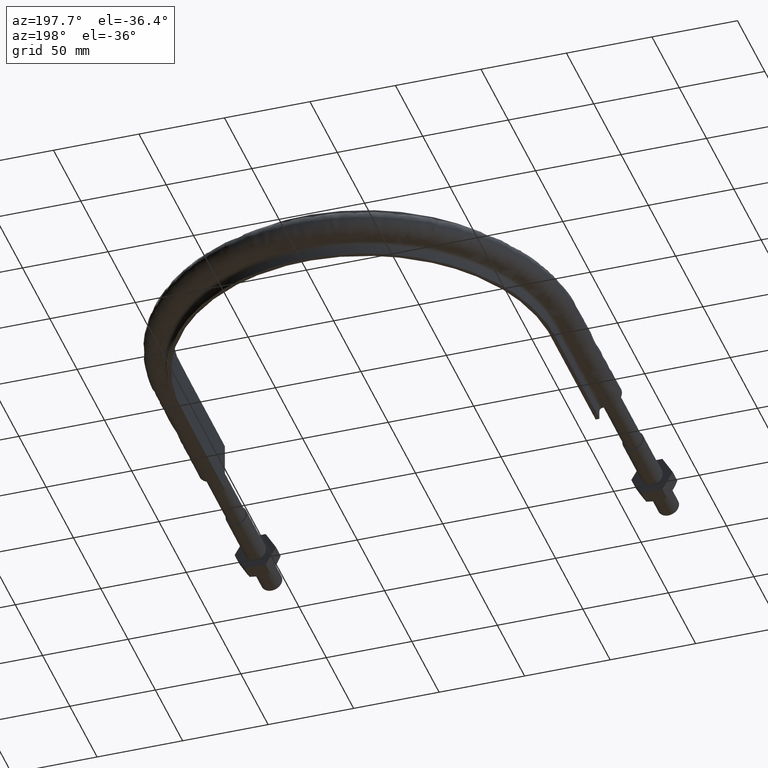
[diagram: clean part render]
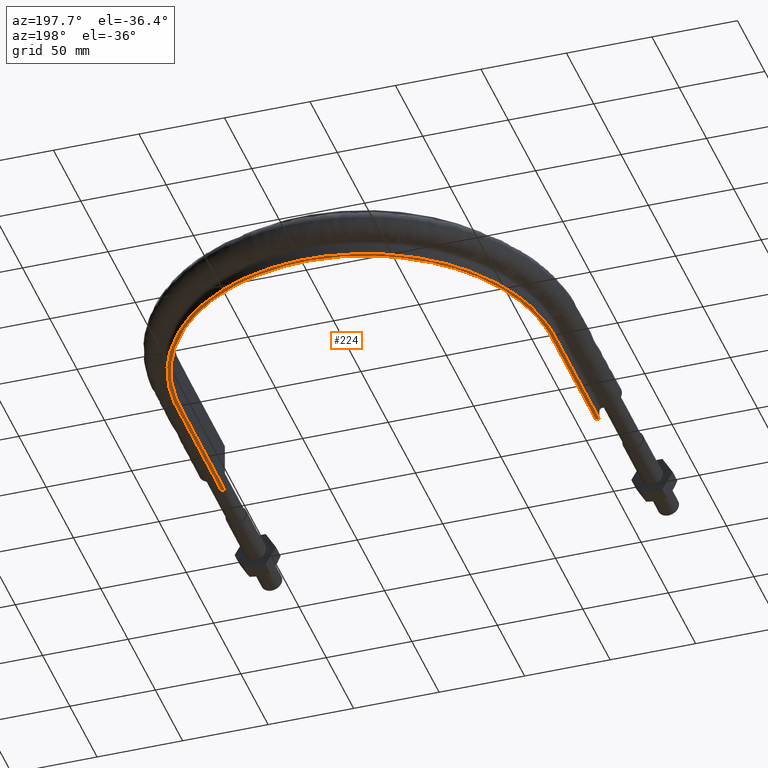
[diagram: same view with one face highlighted and labeled with its STEP entity id]
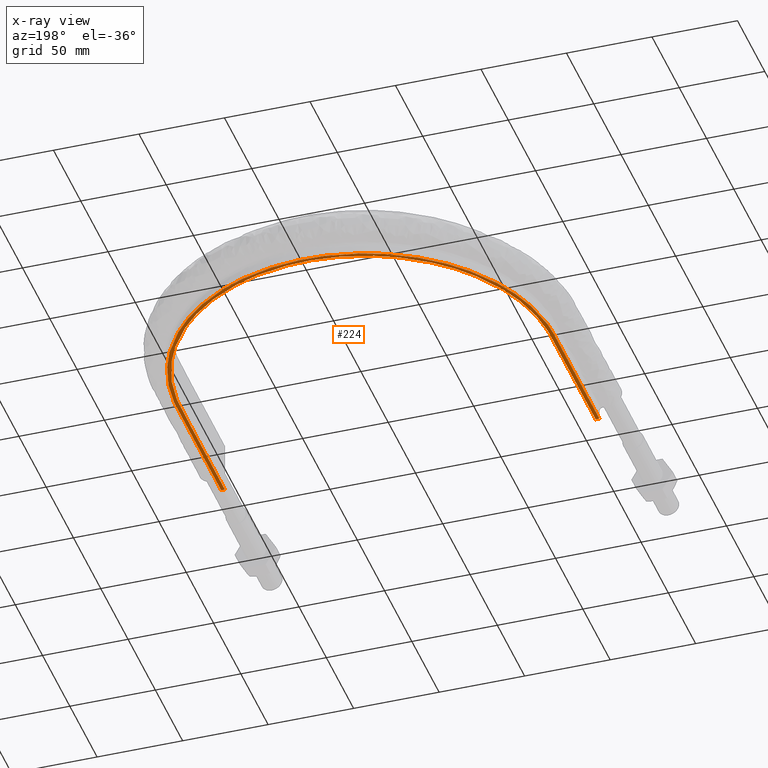
[diagram: x-ray of the same camera — body ghosted, the highlighted face saturated]
A machine part, auxiliary view. The second image highlights one B-rep face of the part: STEP entity #224.
The next image is the same camera in x-ray: the body ghosted, the highlighted face saturated — about 0% of this face is hidden behind the body in this view.
In plain terms, the highlighted planar face has unit normal (0, 0, 1).
Its self-contained STEP definition (entity closure, byte-faithful):
#224 = ADVANCED_FACE( '', ( #273 ), #274, .F. );
#273 = FACE_OUTER_BOUND( '', #562, .T. );
#274 = PLANE( '', #563 );
#562 = EDGE_LOOP( '', ( #1410, #1411, #1412, #1413 ) );
#563 = AXIS2_PLACEMENT_3D( '', #1414, #1415, #1416 );
#1410 = ORIENTED_EDGE( '', *, *, #1664, .F. );
#1411 = ORIENTED_EDGE( '', *, *, #1656, .F. );
#1412 = ORIENTED_EDGE( '', *, *, #1666, .F. );
#1413 = ORIENTED_EDGE( '', *, *, #1660, .F. );
#1414 = CARTESIAN_POINT( '', ( 150.000000000000, 409.500000000000, -15.0000000000000 ) );
#1415 = DIRECTION( '', ( 0.000000000000000, 0.000000000000000, 1.00000000000000 ) );
#1416 = DIRECTION( '', ( 1.00000000000000, 0.000000000000000, 0.000000000000000 ) );
#1656 = EDGE_CURVE( '', #1740, #1735, #1742, .T. );
#1660 = EDGE_CURVE( '', #1747, #1750, #1751, .T. );
#1664 = EDGE_CURVE( '', #1735, #1747, #1756, .T. );
#1666 = EDGE_CURVE( '', #1750, #1740, #1758, .T. );
#1735 = VERTEX_POINT( '', #1883 );
#1740 = VERTEX_POINT( '', #1890 );
#1742 = LINE( '', #1922, #1923 );
#1747 = VERTEX_POINT( '', #1948 );
#1750 = VERTEX_POINT( '', #1952 );
#1751 = LINE( '', #1953, #1954 );
#1756 = B_SPLINE_CURVE_WITH_KNOTS( '', 3, ( #2006, #2007, #2008, #2009, #2010, #2011, #2012, #2013, #2014, #2015, #2016, #2017, #2018, #2019, #2020, #2021, #2022 ), .UNSPECIFIED., .F., .F., ( 4, 3, 1, 1, 1, 1, 1, 1, 1, 3, 4 ), ( -10.0000000000000, -9.00000000000000, -8.00000000000000, -7.00000000000000, -6.00000000000000, -5.00000000000000, -4.00000000000000, -3.00000000000000, -2.00000000000000, -1.00000000000000, 0.000000000000000 ), .UNSPECIFIED. );
#1758 = B_SPLINE_CURVE_WITH_KNOTS( '', 3, ( #2040, #2041, #2042, #2043, #2044, #2045, #2046, #2047, #2048, #2049, #2050, #2051, #2052, #2053, #2054, #2055, #2056 ), .UNSPECIFIED., .F., .F., ( 4, 3, 1, 1, 1, 1, 1, 1, 1, 3, 4 ), ( 0.000000000000000, 1.00000000000000, 2.00000000000000, 3.00000000000000, 4.00000000000000, 5.00000000000000, 6.00000000000000, 7.00000000000000, 8.00000000000000, 9.00000000000000, 10.0000000000000 ), .UNSPECIFIED. );
#1883 = CARTESIAN_POINT( '', ( -108.400000000000, 109.500000000000, -15.0000000000000 ) );
#1890 = CARTESIAN_POINT( '', ( -110.600000000000, 109.500000000000, -15.0000000000000 ) );
#1922 = CARTESIAN_POINT( '', ( -150.000000000000, 109.500000000000, -15.0000000000000 ) );
#1923 = VECTOR( '', #2387, 1000.00000000000 );
#1948 = CARTESIAN_POINT( '', ( 108.400000000000, 109.500000000000, -15.0000000000000 ) );
#1952 = CARTESIAN_POINT( '', ( 110.600000000000, 109.500000000000, -15.0000000000000 ) );
#1953 = CARTESIAN_POINT( '', ( -150.000000000000, 109.500000000000, -15.0000000000000 ) );
#1954 = VECTOR( '', #2389, 1000.00000000000 );
#2006 = CARTESIAN_POINT( '', ( -108.400000000000, 109.500000000000, -15.0000000000000 ) );
#2007 = CARTESIAN_POINT( '', ( -108.400000000000, 136.866666666667, -15.0000000000000 ) );
#2008 = CARTESIAN_POINT( '', ( -108.400000000000, 164.233333333333, -15.0000000000000 ) );
#2009 = CARTESIAN_POINT( '', ( -108.400000000000, 191.600000000000, -15.0000000000000 ) );
#2010 = CARTESIAN_POINT( '', ( -108.400000000000, 205.774498518656, -15.0000000000000 ) );
#2011 = CARTESIAN_POINT( '', ( -102.755814879494, 234.168943035043, -15.0000000000000 ) );
#2012 = CARTESIAN_POINT( '', ( -78.6458958671129, 270.244256009620, -15.0000000000000 ) );
#2013 = CARTESIAN_POINT( '', ( -42.5628521357854, 294.356283410206, -15.0000000000000 ) );
#2014 = CARTESIAN_POINT( '', ( 7.87171205978664E-014, 302.821858294897, -15.0000000000000 ) );
#2015 = CARTESIAN_POINT( '', ( 42.5628521357854, 294.356283410206, -15.0000000000000 ) );
#2016 = CARTESIAN_POINT( '', ( 78.6458958671129, 270.244256009621, -15.0000000000000 ) );
#2017 = CARTESIAN_POINT( '', ( 102.755814879494, 234.168943035043, -15.0000000000000 ) );
#2018 = CARTESIAN_POINT( '', ( 108.400000000000, 205.774498518656, -15.0000000000000 ) );
#2019 = CARTESIAN_POINT( '', ( 108.400000000000, 191.600000000000, -15.0000000000000 ) );
#2020 = CARTESIAN_POINT( '', ( 108.400000000000, 164.233333333333, -15.0000000000000 ) );
#2021 = CARTESIAN_POINT( '', ( 108.400000000000, 136.866666666667, -15.0000000000000 ) );
#2022 = CARTESIAN_POINT( '', ( 108.400000000000, 109.500000000000, -15.0000000000000 ) );
#2040 = CARTESIAN_POINT( '', ( 110.600000000000, 109.500000000000, -15.0000000000000 ) );
#2041 = CARTESIAN_POINT( '', ( 110.600000000000, 136.866666666667, -15.0000000000000 ) );
#2042 = CARTESIAN_POINT( '', ( 110.600000000000, 164.233333333333, -15.0000000000000 ) );
#2043 = CARTESIAN_POINT( '', ( 110.600000000000, 191.600000000000, -15.0000000000000 ) );
#2044 = CARTESIAN_POINT( '', ( 110.600000000000, 206.066236657480, -15.0000000000000 ) );
#2045 = CARTESIAN_POINT( '', ( 104.841264996974, 235.031001602308, -15.0000000000000 ) );
#2046 = CARTESIAN_POINT( '', ( 80.2420302850801, 271.840865123178, -15.0000000000000 ) );
#2047 = CARTESIAN_POINT( '', ( 43.4266738580984, 296.441597900375, -15.0000000000000 ) );
#2048 = CARTESIAN_POINT( '', ( 8.94018970817697E-014, 305.079201049813, -15.0000000000000 ) );
#2049 = CARTESIAN_POINT( '', ( -43.4266738580983, 296.441597900375, -15.0000000000000 ) );
#2050 = CARTESIAN_POINT( '', ( -80.2420302850801, 271.840865123178, -15.0000000000000 ) );
#2051 = CARTESIAN_POINT( '', ( -104.841264996974, 235.031001602308, -15.0000000000000 ) );
#2052 = CARTESIAN_POINT( '', ( -110.600000000000, 206.066236657480, -15.0000000000000 ) );
#2053 = CARTESIAN_POINT( '', ( -110.600000000000, 191.600000000000, -15.0000000000000 ) );
#2054 = CARTESIAN_POINT( '', ( -110.600000000000, 164.233333333333, -15.0000000000000 ) );
#2055 = CARTESIAN_POINT( '', ( -110.600000000000, 136.866666666667, -15.0000000000000 ) );
#2056 = CARTESIAN_POINT( '', ( -110.600000000000, 109.500000000000, -15.0000000000000 ) );
#2387 = DIRECTION( '', ( 1.00000000000000, -1.22460635382238E-016, 0.000000000000000 ) );
#2389 = DIRECTION( '', ( 1.00000000000000, -1.22460635382238E-016, 0.000000000000000 ) );